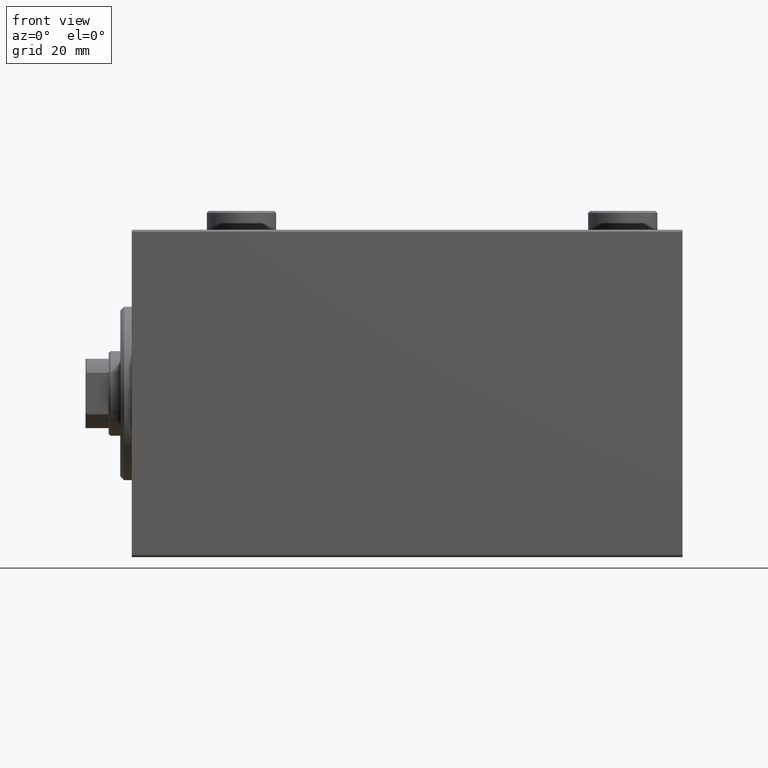
[diagram: clean part render]
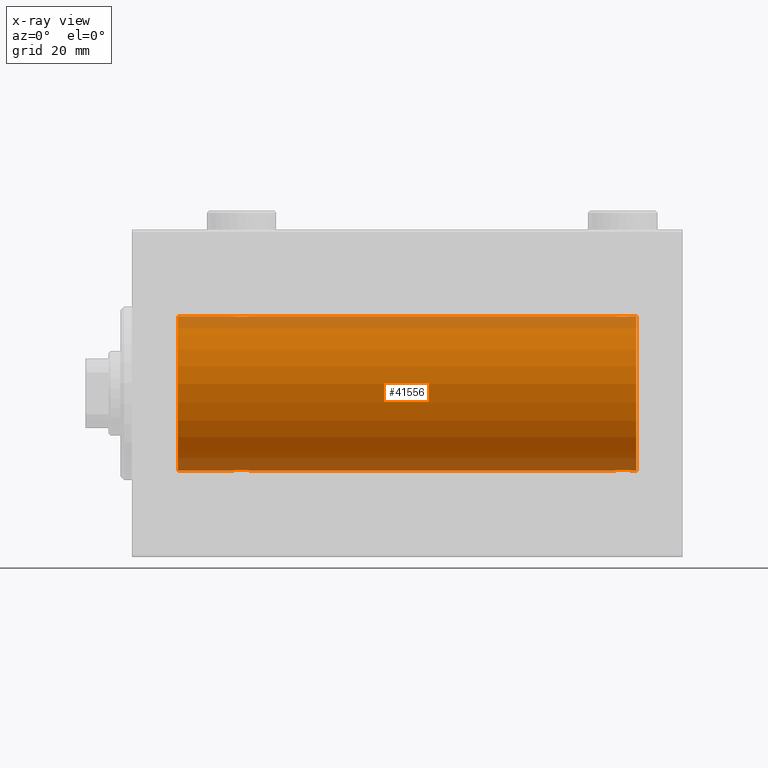
[diagram: x-ray — body ghosted, one internal face saturated and labeled with its STEP entity id]
A machine part, front view, then the same camera in x-ray: the body is ghosted and one INTERNAL B-rep face — a face not visible from any outside direction — is saturated and labeled: STEP entity #41556.
In plain terms, the highlighted cylindrical surface (partial cylindrical patch) has radius 20 mm, axis along (-1, -0, -0).
Its self-contained STEP definition (entity closure, byte-faithful):
#783 = AXIS2_PLACEMENT_3D ( 'NONE', #20045, #20478, #16585 ) ;
#1200 = EDGE_CURVE ( 'NONE', #22480, #13085, #5901, .T. ) ;
#1282 = CARTESIAN_POINT ( 'NONE',  ( 126.8536932607535732, -1.897222639860593363, 19.90987429971496780 ) ) ;
#1347 = CARTESIAN_POINT ( 'NONE',  ( 30.50000000000000000, 2.449293582768389958E-15, -20.00000000000000000 ) ) ;
#1694 = DIRECTION ( 'NONE',  ( -1.000000000000000000, 0.000000000000000000, 0.000000000000000000 ) ) ;
#1981 = EDGE_CURVE ( 'NONE', #22480, #22872, #22384, .T. ) ;
#2177 = CARTESIAN_POINT ( 'NONE',  ( 30.24686976303071617, -1.008108445278690146, 19.97602680192586533 ) ) ;
#2326 = LINE ( 'NONE', #34130, #19792 ) ;
#2449 = CARTESIAN_POINT ( 'NONE',  ( 125.5000000000000000, -0.2644051013331143452, -19.99999999999999645 ) ) ;
#2655 = EDGE_CURVE ( 'NONE', #9736, #31272, #16030, .T. ) ;
#2668 = CARTESIAN_POINT ( 'NONE',  ( 126.2819458052784398, -1.591668229360208242, -19.93669678979812687 ) ) ;
#2844 = CARTESIAN_POINT ( 'NONE',  ( 128.8209690684728628, -1.507328959728491347, 19.94333197382385592 ) ) ;
#3114 = CARTESIAN_POINT ( 'NONE',  ( 127.3694112828916758, -2.000100592782560582, -19.89973863218036243 ) ) ;
#3343 = CARTESIAN_POINT ( 'NONE',  ( 127.6336519614245049, -1.999898234284069876, -19.89975896996866211 ) ) ;
#4136 = ORIENTED_EDGE ( 'NONE', *, *, #1981, .T. ) ;
#4265 = VERTEX_POINT ( 'NONE', #33608 ) ;
#4342 = CARTESIAN_POINT ( 'NONE',  ( 30.24825913460018612, -1.005710574260838985, -19.97614991974274190 ) ) ;
#4513 = ORIENTED_EDGE ( 'NONE', *, *, #40171, .T. ) ;
#4635 = CARTESIAN_POINT ( 'NONE',  ( 11.99999999999999645, 0.000000000000000000, 20.00000000000000000 ) ) ;
#4806 = CARTESIAN_POINT ( 'NONE',  ( 29.50306556339602437, -1.735203193119894349, -19.92471783160910803 ) ) ;
#4957 = CARTESIAN_POINT ( 'NONE',  ( 26.55244937117492299, -0.5243189001515012881, 19.99457699142850586 ) ) ;
#4962 = CARTESIAN_POINT ( 'NONE',  ( 127.3663480385754951, -1.999898234284060772, 19.89975896996866211 ) ) ;
#5028 = CARTESIAN_POINT ( 'NONE',  ( 26.90225308445269903, -1.230936344679278260, -19.96293863536309132 ) ) ;
#5184 = CARTESIAN_POINT ( 'NONE',  ( 128.7180541947215033, -1.591668229360197806, 19.93669678979812687 ) ) ;
#5755 = CARTESIAN_POINT ( 'NONE',  ( 131.0000000000000000, 2.449293598294706513E-15, -20.00000000000000000 ) ) ;
#5850 = CARTESIAN_POINT ( 'NONE',  ( 29.50067219139244301, -1.736582545981377290, 19.92459705242981371 ) ) ;
#5901 = CIRCLE ( 'NONE', #783, 20.00000000000000000 ) ;
#6118 = VERTEX_POINT ( 'NONE', #34518 ) ;
#6279 = EDGE_CURVE ( 'NONE', #22872, #6118, #38192, .T. ) ;
#6555 = CARTESIAN_POINT ( 'NONE',  ( 129.5000000000000568, -0.2610801504281894392, -20.00000000000000000 ) ) ;
#6789 = CARTESIAN_POINT ( 'NONE',  ( 125.5532051580820223, -0.5270924491156693259, -19.99450181871975474 ) ) ;
#7739 = B_SPLINE_CURVE_WITH_KNOTS ( 'NONE', 3,
 ( #15782, #33534, #4957, #16006, #44117, #15547, #29608, #12766, #26821, #8850, #40883, #12535, #40660, #36537, #9079, #19015, #23157, #41098, #5850, #33748, #26599, #19697, #2177, #30291, #16227, #43893 ),
 .UNSPECIFIED., .F., .F.,
 ( 4, 2, 2, 2, 2, 2, 2, 2, 2, 2, 2, 2, 4 ),
 ( 0.006256819553329787641, 0.007038738568778755977, 0.007820657584227725181, 0.008211617091952205447, 0.008602576599676685712, 0.008993536107401164242, 0.009384495615125644508, 0.009775455122850124773, 0.01016641463057460504, 0.01055737413829908530, 0.01094833364602356557, 0.01173025266147252610, 0.01251217167692148663 ),
 .UNSPECIFIED. ) ;
#7920 = CARTESIAN_POINT ( 'NONE',  ( 30.50000000000000000, -6.994834070630008937E-15, 20.00000000000000000 ) ) ;
#8179 = CARTESIAN_POINT ( 'NONE',  ( 126.1769333108053388, -1.505486175075775979, 19.94347168299867690 ) ) ;
#8250 = CARTESIAN_POINT ( 'NONE',  ( 29.72028945794465571, -1.589957321664208223, -19.93683391378736047 ) ) ;
#8512 = ORIENTED_EDGE ( 'NONE', *, *, #38899, .T. ) ;
#8629 = CARTESIAN_POINT ( 'NONE',  ( 127.6305887171083384, -2.000100592782551701, 19.89973863218036598 ) ) ;
#8850 = CARTESIAN_POINT ( 'NONE',  ( 27.85369326075355545, -1.897222639860595583, 19.90987429971497491 ) ) ;
#9079 = CARTESIAN_POINT ( 'NONE',  ( 28.76077256031568297, -1.987205673487810298, 19.90104673894211018 ) ) ;
#9564 = CARTESIAN_POINT ( 'NONE',  ( 127.2392274396842993, -1.987205673487814295, -19.90104673894210308 ) ) ;
#9736 = VERTEX_POINT ( 'NONE', #12193 ) ;
#9950 = DIRECTION ( 'NONE',  ( -1.000000000000000000, -0.000000000000000000, -0.000000000000000000 ) ) ;
#10006 = VECTOR ( 'NONE', #9950, 1000.000000000000000 ) ;
#11865 = CARTESIAN_POINT ( 'NONE',  ( 125.7517408653998103, -1.005710574260841650, 19.97614991974273835 ) ) ;
#12090 = CARTESIAN_POINT ( 'NONE',  ( 128.3857907667072595, -1.797933656607912489, 19.91908554465557657 ) ) ;
#12193 = CARTESIAN_POINT ( 'NONE',  ( 125.5000000000000000, -1.553188236289650144E-23, 20.00000000000000000 ) ) ;
#12382 = CARTESIAN_POINT ( 'NONE',  ( 26.75313023696928738, -1.008108445278687704, -19.97602680192586533 ) ) ;
#12535 = CARTESIAN_POINT ( 'NONE',  ( 28.23641855908585185, -1.986835489085814643, 19.90108393514801222 ) ) ;
#12561 = CARTESIAN_POINT ( 'NONE',  ( 131.0000000000000000, 0.000000000000000000, 20.00000000000000000 ) ) ;
#12766 = CARTESIAN_POINT ( 'NONE',  ( 27.49693443660397563, -1.735203193119895460, 19.92471783160911869 ) ) ;
#13015 = DIRECTION ( 'NONE',  ( 0.000000000000000000, 0.000000000000000000, 1.000000000000000000 ) ) ;
#13085 = VERTEX_POINT ( 'NONE', #26995 ) ;
#13439 = CARTESIAN_POINT ( 'NONE',  ( 129.5000000000000000, 6.344962748519499734E-15, 20.00000000000000000 ) ) ;
#13705 = CARTESIAN_POINT ( 'NONE',  ( 126.9835146708109050, -1.936551476643007197, -19.90603968831098669 ) ) ;
#13908 = DIRECTION ( 'NONE',  ( -1.000000000000000000, -0.000000000000000000, -0.000000000000000000 ) ) ;
#14142 = CIRCLE ( 'NONE', #17829, 20.00000000000000000 ) ;
#14494 = B_SPLINE_CURVE_WITH_KNOTS ( 'NONE', 3,
 ( #1347, #29688, #29917, #4342, #32465, #39830, #8250, #4806, #40276, #43969, #25994, #18410, #22548, #36388, #36609, #40503, #18648, #32929, #25542, #43286, #43514, #5028, #12382, #19088, #39595, #33152 ),
 .UNSPECIFIED., .F., .F.,
 ( 4, 2, 2, 2, 2, 2, 2, 2, 2, 2, 2, 2, 4 ),
 ( 0.006256819553329842284, 0.007038738568778818427, 0.007820657584227792836, 0.008211617091952278305, 0.008602576599676762040, 0.008993536107401245774, 0.009384495615125729509, 0.009775455122850213244, 0.01016641463057469871, 0.01055737413829918071, 0.01094833364602366618, 0.01173025266147263365, 0.01251217167692159939 ),
 .UNSPECIFIED. ) ;
#14566 = CARTESIAN_POINT ( 'NONE',  ( 129.5000000000000000, 6.344962748519499734E-15, 20.00000000000000000 ) ) ;
#15288 = CARTESIAN_POINT ( 'NONE',  ( 11.99999999999999645, 2.449293598294706513E-15, -20.00000000000000000 ) ) ;
#15547 = CARTESIAN_POINT ( 'NONE',  ( 27.17693331080530683, -1.505486175075772426, 19.94347168299868045 ) ) ;
#15782 = CARTESIAN_POINT ( 'NONE',  ( 26.50000000000000355, -1.552636033655995435E-23, 20.00000000000000000 ) ) ;
#16006 = CARTESIAN_POINT ( 'NONE',  ( 26.75174086539981033, -1.005710574260840318, 19.97614991974274190 ) ) ;
#16030 = LINE ( 'NONE', #12561, #29616 ) ;
#16227 = CARTESIAN_POINT ( 'NONE',  ( 30.49999999999997868, -0.2644051013330948052, 19.99999999999999645 ) ) ;
#16234 = CARTESIAN_POINT ( 'NONE',  ( 125.5000000000000000, -1.553188236289650144E-23, 20.00000000000000000 ) ) ;
#16273 = EDGE_CURVE ( 'NONE', #25824, #29255, #14142, .T. ) ;
#16585 = DIRECTION ( 'NONE',  ( 0.000000000000000000, 0.000000000000000000, 1.000000000000000000 ) ) ;
#17141 = VERTEX_POINT ( 'NONE', #17292 ) ;
#17171 = CARTESIAN_POINT ( 'NONE',  ( 129.5000000000000000, 2.449293582762473501E-15, -20.00000000000000000 ) ) ;
#17215 = CARTESIAN_POINT ( 'NONE',  ( 131.0000000000000000, 2.449293598294706513E-15, -20.00000000000000000 ) ) ;
#17292 = CARTESIAN_POINT ( 'NONE',  ( 30.50000000000000000, 2.449293582768389958E-15, -20.00000000000000000 ) ) ;
#17829 = AXIS2_PLACEMENT_3D ( 'NONE', #37390, #1694, #36500 ) ;
#18410 = CARTESIAN_POINT ( 'NONE',  ( 28.76358144091416236, -1.986835489085814199, -19.90108393514801222 ) ) ;
#18648 = CARTESIAN_POINT ( 'NONE',  ( 27.85651471266959334, -1.898187925611338533, -19.90978194174746818 ) ) ;
#19015 = CARTESIAN_POINT ( 'NONE',  ( 29.01648532918904522, -1.936551476643006087, 19.90603968831098314 ) ) ;
#19021 = CARTESIAN_POINT ( 'NONE',  ( 127.7607725603156723, -1.987205673487804747, 19.90104673894209952 ) ) ;
#19088 = CARTESIAN_POINT ( 'NONE',  ( 26.55320515808203297, -0.5270924491156698810, -19.99450181871976184 ) ) ;
#19697 = CARTESIAN_POINT ( 'NONE',  ( 30.09774691554729742, -1.230936344679279371, 19.96293863536309487 ) ) ;
#19792 = VECTOR ( 'NONE', #23083, 1000.000000000000000 ) ;
#19964 = CARTESIAN_POINT ( 'NONE',  ( 126.8565147126695933, -1.898187925611344085, -19.90978194174746818 ) ) ;
#20045 = CARTESIAN_POINT ( 'NONE',  ( 131.0000000000000000, 0.000000000000000000, 0.000000000000000000 ) ) ;
#20187 = CARTESIAN_POINT ( 'NONE',  ( 129.4475506288250983, -0.5243189001515025094, -19.99457699142850231 ) ) ;
#20478 = DIRECTION ( 'NONE',  ( -1.000000000000000000, 0.000000000000000000, 0.000000000000000000 ) ) ;
#20858 = CARTESIAN_POINT ( 'NONE',  ( 125.5000000000000000, -8.073198165226647480E-15, -20.00000000000000000 ) ) ;
#20978 = CARTESIAN_POINT ( 'NONE',  ( 26.50000000000000355, -1.552636033655995435E-23, 20.00000000000000000 ) ) ;
#21299 = CARTESIAN_POINT ( 'NONE',  ( 129.5000000000000000, 2.449293582762473501E-15, -20.00000000000000000 ) ) ;
#22252 = CARTESIAN_POINT ( 'NONE',  ( 126.4969344366040360, -1.735203193119897236, 19.92471783160911514 ) ) ;
#22384 = LINE ( 'NONE', #5755, #28112 ) ;
#22480 = VERTEX_POINT ( 'NONE', #17215 ) ;
#22548 = CARTESIAN_POINT ( 'NONE',  ( 28.63365196142448355, -1.999898234284062992, -19.89975896996866211 ) ) ;
#22703 = CARTESIAN_POINT ( 'NONE',  ( 128.5006721913923968, -1.736582545981374404, 19.92459705242980306 ) ) ;
#22872 = VERTEX_POINT ( 'NONE', #21299 ) ;
#23083 = DIRECTION ( 'NONE',  ( -1.000000000000000000, -0.000000000000000000, -0.000000000000000000 ) ) ;
#23157 = CARTESIAN_POINT ( 'NONE',  ( 29.14348528733041377, -1.898187925611340310, 19.90978194174746818 ) ) ;
#23165 = CARTESIAN_POINT ( 'NONE',  ( 125.5000000000000000, -0.2610801504281912711, 19.99999999999999645 ) ) ;
#23637 = CARTESIAN_POINT ( 'NONE',  ( 126.1790309315271088, -1.507328959728501783, -19.94333197382385592 ) ) ;
#24082 = CARTESIAN_POINT ( 'NONE',  ( 128.1463067392464552, -1.897222639860601801, -19.90987429971496425 ) ) ;
#25084 = VECTOR ( 'NONE', #37335, 1000.000000000000000 ) ;
#25542 = CARTESIAN_POINT ( 'NONE',  ( 27.49932780860757475, -1.736582545981376180, -19.92459705242981371 ) ) ;
#25824 = VERTEX_POINT ( 'NONE', #15288 ) ;
#25926 = CARTESIAN_POINT ( 'NONE',  ( 127.2364185590858767, -1.986835489085816198, 19.90108393514801222 ) ) ;
#25994 = CARTESIAN_POINT ( 'NONE',  ( 29.01923512135276795, -1.935816449315124643, -19.90611141657401717 ) ) ;
#26399 = CYLINDRICAL_SURFACE ( 'NONE', #38363, 20.00000000000000000 ) ;
#26599 = CARTESIAN_POINT ( 'NONE',  ( 29.82096906847289830, -1.507328959728492901, 19.94333197382385592 ) ) ;
#26644 = CARTESIAN_POINT ( 'NONE',  ( 131.0000000000000000, 0.000000000000000000, 20.00000000000000000 ) ) ;
#26821 = CARTESIAN_POINT ( 'NONE',  ( 27.61170562792908711, -1.796691196322317996, 19.91919800395357143 ) ) ;
#26826 = CARTESIAN_POINT ( 'NONE',  ( 129.5000000000000284, -0.2644051013331001898, 20.00000000000000355 ) ) ;
#26995 = CARTESIAN_POINT ( 'NONE',  ( 131.0000000000000000, 0.000000000000000000, 20.00000000000000000 ) ) ;
#27080 = CARTESIAN_POINT ( 'NONE',  ( 128.3882943720709591, -1.796691196322323991, -19.91919800395357854 ) ) ;
#27309 = CARTESIAN_POINT ( 'NONE',  ( 128.0192351213527786, -1.935816449315133081, -19.90611141657401362 ) ) ;
#27758 = CARTESIAN_POINT ( 'NONE',  ( 126.4993278086076174, -1.736582545981386394, -19.92459705242980661 ) ) ;
#28112 = VECTOR ( 'NONE', #40791, 1000.000000000000000 ) ;
#28318 = ORIENTED_EDGE ( 'NONE', *, *, #1200, .F. ) ;
#29203 = ORIENTED_EDGE ( 'NONE', *, *, #40420, .T. ) ;
#29255 = VERTEX_POINT ( 'NONE', #4635 ) ;
#29608 = CARTESIAN_POINT ( 'NONE',  ( 27.27971054205536205, -1.589957321664209111, 19.93683391378736403 ) ) ;
#29613 = CARTESIAN_POINT ( 'NONE',  ( 126.9807648786472924, -1.935816449315131527, 19.90611141657401717 ) ) ;
#29616 = VECTOR ( 'NONE', #13908, 1000.000000000000000 ) ;
#29688 = CARTESIAN_POINT ( 'NONE',  ( 30.49999999999999645, -0.2610801504281900498, -19.99999999999999645 ) ) ;
#29823 = ORIENTED_EDGE ( 'NONE', *, *, #36944, .T. ) ;
#29917 = CARTESIAN_POINT ( 'NONE',  ( 30.44755062882508412, -0.5243189001514996228, -19.99457699142849876 ) ) ;
#30093 = CARTESIAN_POINT ( 'NONE',  ( 131.0000000000000000, 0.000000000000000000, 0.000000000000000000 ) ) ;
#30291 = CARTESIAN_POINT ( 'NONE',  ( 30.44679484191798124, -0.5270924491156734337, 19.99450181871975829 ) ) ;
#30420 = CARTESIAN_POINT ( 'NONE',  ( 131.0000000000000000, 2.449293598294706513E-15, -20.00000000000000000 ) ) ;
#30960 = CARTESIAN_POINT ( 'NONE',  ( 129.0977469155472761, -1.230936344679278704, 19.96293863536309132 ) ) ;
#31166 = CARTESIAN_POINT ( 'NONE',  ( 131.0000000000000000, 2.449293598294706513E-15, -20.00000000000000000 ) ) ;
#31272 = VERTEX_POINT ( 'NONE', #7920 ) ;
#31412 = EDGE_CURVE ( 'NONE', #4265, #25824, #37635, .T. ) ;
#32465 = CARTESIAN_POINT ( 'NONE',  ( 30.09941524884030173, -1.228758402364235502, -19.96307487248084911 ) ) ;
#32863 = CARTESIAN_POINT ( 'NONE',  ( 126.6117056279290551, -1.796691196322314443, 19.91919800395357143 ) ) ;
#32929 = CARTESIAN_POINT ( 'NONE',  ( 27.61420923329272981, -1.797933656607917596, -19.91908554465558367 ) ) ;
#33080 = CARTESIAN_POINT ( 'NONE',  ( 128.0164853291890950, -1.936551476642997649, 19.90603968831098669 ) ) ;
#33152 = CARTESIAN_POINT ( 'NONE',  ( 26.50000000000000355, -3.809869420541414000E-15, -20.00000000000000000 ) ) ;
#33534 = CARTESIAN_POINT ( 'NONE',  ( 26.50000000000000711, -0.2610801504281919927, 20.00000000000000000 ) ) ;
#33608 = CARTESIAN_POINT ( 'NONE',  ( 26.50000000000000355, -3.809869420541414000E-15, -20.00000000000000000 ) ) ;
#33748 = CARTESIAN_POINT ( 'NONE',  ( 29.71805419472151044, -1.591668229360198028, 19.93669678979812332 ) ) ;
#33801 = ORIENTED_EDGE ( 'NONE', *, *, #35791, .F. ) ;
#34021 = CARTESIAN_POINT ( 'NONE',  ( 125.9022530844527381, -1.230936344679288252, -19.96293863536308422 ) ) ;
#34130 = CARTESIAN_POINT ( 'NONE',  ( 131.0000000000000000, 0.000000000000000000, 20.00000000000000000 ) ) ;
#34184 = EDGE_CURVE ( 'NONE', #13085, #36350, #2326, .T. ) ;
#34518 = CARTESIAN_POINT ( 'NONE',  ( 125.5000000000000000, -8.073198165226647480E-15, -20.00000000000000000 ) ) ;
#34692 = CARTESIAN_POINT ( 'NONE',  ( 129.0994152488403302, -1.228758402364245494, -19.96307487248085266 ) ) ;
#34923 = CARTESIAN_POINT ( 'NONE',  ( 125.7531302369692696, -1.008108445278684595, -19.97602680192585822 ) ) ;
#35791 = EDGE_CURVE ( 'NONE', #36567, #29255, #40473, .T. ) ;
#36350 = VERTEX_POINT ( 'NONE', #14566 ) ;
#36388 = CARTESIAN_POINT ( 'NONE',  ( 28.36941128289166159, -2.000100592782553921, -19.89973863218036598 ) ) ;
#36481 = ORIENTED_EDGE ( 'NONE', *, *, #31412, .T. ) ;
#36500 = DIRECTION ( 'NONE',  ( 0.000000000000000000, 0.000000000000000000, 1.000000000000000000 ) ) ;
#36537 = CARTESIAN_POINT ( 'NONE',  ( 28.63058871710834552, -2.000100592782554809, 19.89973863218036598 ) ) ;
#36543 = CARTESIAN_POINT ( 'NONE',  ( 126.2797105420553407, -1.589957321664211998, 19.93683391378736403 ) ) ;
#36567 = VERTEX_POINT ( 'NONE', #20978 ) ;
#36609 = CARTESIAN_POINT ( 'NONE',  ( 28.23922743968432059, -1.987205673487808966, -19.90104673894211018 ) ) ;
#36944 = EDGE_CURVE ( 'NONE', #36567, #31272, #7739, .T. ) ;
#37000 = ORIENTED_EDGE ( 'NONE', *, *, #2655, .F. ) ;
#37229 = ORIENTED_EDGE ( 'NONE', *, *, #6279, .T. ) ;
#37335 = DIRECTION ( 'NONE',  ( -1.000000000000000000, -0.000000000000000000, -0.000000000000000000 ) ) ;
#37390 = CARTESIAN_POINT ( 'NONE',  ( 11.99999999999999645, 0.000000000000000000, 0.000000000000000000 ) ) ;
#37460 = FACE_OUTER_BOUND ( 'NONE', #41291, .T. ) ;
#37635 = LINE ( 'NONE', #31166, #10006 ) ;
#37692 = DIRECTION ( 'NONE',  ( -1.000000000000000000, -0.000000000000000000, -0.000000000000000000 ) ) ;
#37701 = CARTESIAN_POINT ( 'NONE',  ( 129.2482591346002039, -1.005710574260843870, -19.97614991974274190 ) ) ;
#38136 = CARTESIAN_POINT ( 'NONE',  ( 127.7635814409141517, -1.986835489085821527, -19.90108393514801577 ) ) ;
#38192 = B_SPLINE_CURVE_WITH_KNOTS ( 'NONE', 3,
 ( #17171, #6555, #20187, #37701, #34692, #45061, #38366, #45279, #27080, #24082, #27309, #38136, #3343, #3114, #9564, #13705, #19964, #41592, #27758, #2668, #23637, #34021, #34923, #6789, #2449, #20858 ),
 .UNSPECIFIED., .F., .F.,
 ( 4, 2, 2, 2, 2, 2, 2, 2, 2, 2, 2, 2, 4 ),
 ( 0.006256819553329823203, 0.007038738568778736028, 0.007820657584227648854, 0.008211617091952134323, 0.008602576599676619792, 0.008993536107401105262, 0.009384495615125590731, 0.009775455122850076201, 0.01016641463057456340, 0.01055737413829904714, 0.01094833364602353434, 0.01173025266147256426, 0.01251217167692159418 ),
 .UNSPECIFIED. ) ;
#38363 = AXIS2_PLACEMENT_3D ( 'NONE', #30093, #37692, #13015 ) ;
#38366 = CARTESIAN_POINT ( 'NONE',  ( 128.7202894579446593, -1.589957321664221324, -19.93683391378736403 ) ) ;
#38899 = EDGE_CURVE ( 'NONE', #9736, #36350, #39902, .T. ) ;
#39595 = CARTESIAN_POINT ( 'NONE',  ( 26.50000000000001066, -0.2644051013331030209, -20.00000000000000355 ) ) ;
#39752 = CARTESIAN_POINT ( 'NONE',  ( 125.5524493711749301, -0.5243189001515013992, 19.99457699142850231 ) ) ;
#39830 = CARTESIAN_POINT ( 'NONE',  ( 29.82306668919470383, -1.505486175075772870, -19.94347168299867334 ) ) ;
#39902 = B_SPLINE_CURVE_WITH_KNOTS ( 'NONE', 3,
 ( #16234, #23165, #39752, #11865, #40208, #8179, #36543, #22252, #32863, #1282, #29613, #25926, #4962, #8629, #19021, #33080, #43673, #12090, #22703, #5184, #2844, #30960, #45467, #45021, #26826, #13439 ),
 .UNSPECIFIED., .F., .F.,
 ( 4, 2, 2, 2, 2, 2, 2, 2, 2, 2, 2, 2, 4 ),
 ( 0.006256819553329837080, 0.007038738568778794141, 0.007820657584227751202, 0.008211617091952229733, 0.008602576599676708263, 0.008993536107401185059, 0.009384495615125663590, 0.009775455122850142120, 0.01016641463057462239, 0.01055737413829909918, 0.01094833364602357945, 0.01173025266147259202, 0.01251217167692160633 ),
 .UNSPECIFIED. ) ;
#40171 = EDGE_CURVE ( 'NONE', #6118, #17141, #44478, .T. ) ;
#40208 = CARTESIAN_POINT ( 'NONE',  ( 125.9005847511597267, -1.228758402364239499, 19.96307487248084556 ) ) ;
#40276 = CARTESIAN_POINT ( 'NONE',  ( 29.38829437207091999, -1.796691196322316664, -19.91919800395357143 ) ) ;
#40420 = EDGE_CURVE ( 'NONE', #17141, #4265, #14494, .T. ) ;
#40473 = LINE ( 'NONE', #26644, #45565 ) ;
#40503 = CARTESIAN_POINT ( 'NONE',  ( 27.98351467081095123, -1.936551476643005198, -19.90603968831098314 ) ) ;
#40660 = CARTESIAN_POINT ( 'NONE',  ( 28.36634803857552001, -1.999898234284063436, 19.89975896996866211 ) ) ;
#40791 = DIRECTION ( 'NONE',  ( -1.000000000000000000, -0.000000000000000000, -0.000000000000000000 ) ) ;
#40883 = CARTESIAN_POINT ( 'NONE',  ( 27.98076487864723205, -1.935816449315125531, 19.90611141657401717 ) ) ;
#41098 = CARTESIAN_POINT ( 'NONE',  ( 29.38579076670729151, -1.797933656607919817, 19.91908554465558367 ) ) ;
#41199 = ORIENTED_EDGE ( 'NONE', *, *, #34184, .F. ) ;
#41291 = EDGE_LOOP ( 'NONE', ( #28318, #4136, #37229, #4513, #29203, #36481, #42738, #33801, #29823, #37000, #8512, #41199 ) ) ;
#41556 = ADVANCED_FACE ( 'NONE', ( #37460 ), #26399, .F. ) ;
#41592 = CARTESIAN_POINT ( 'NONE',  ( 126.6142092332926978, -1.797933656607922259, -19.91908554465557657 ) ) ;
#42738 = ORIENTED_EDGE ( 'NONE', *, *, #16273, .T. ) ;
#43286 = CARTESIAN_POINT ( 'NONE',  ( 27.28194580527848601, -1.591668229360197140, -19.93669678979812332 ) ) ;
#43514 = CARTESIAN_POINT ( 'NONE',  ( 27.17903093152710525, -1.507328959728492457, -19.94333197382385592 ) ) ;
#43673 = CARTESIAN_POINT ( 'NONE',  ( 128.1434852873304067, -1.898187925611334093, 19.90978194174746463 ) ) ;
#43893 = CARTESIAN_POINT ( 'NONE',  ( 30.50000000000000000, -6.994834070630008937E-15, 20.00000000000000000 ) ) ;
#43969 = CARTESIAN_POINT ( 'NONE',  ( 29.14630673924643744, -1.897222639860594029, -19.90987429971496780 ) ) ;
#44117 = CARTESIAN_POINT ( 'NONE',  ( 26.90058475115969472, -1.228758402364234392, 19.96307487248084556 ) ) ;
#44397 = DIRECTION ( 'NONE',  ( -1.000000000000000000, -0.000000000000000000, -0.000000000000000000 ) ) ;
#44478 = LINE ( 'NONE', #30420, #25084 ) ;
#45021 = CARTESIAN_POINT ( 'NONE',  ( 129.4467948419179777, -0.5270924491156545599, 19.99450181871975829 ) ) ;
#45061 = CARTESIAN_POINT ( 'NONE',  ( 128.8230666891947180, -1.505486175075785527, -19.94347168299868400 ) ) ;
#45279 = CARTESIAN_POINT ( 'NONE',  ( 128.5030655633960350, -1.735203193119907006, -19.92471783160911514 ) ) ;
#45467 = CARTESIAN_POINT ( 'NONE',  ( 129.2468697630306735, -1.008108445278671050, 19.97602680192585822 ) ) ;
#45565 = VECTOR ( 'NONE', #44397, 1000.000000000000000 ) ;